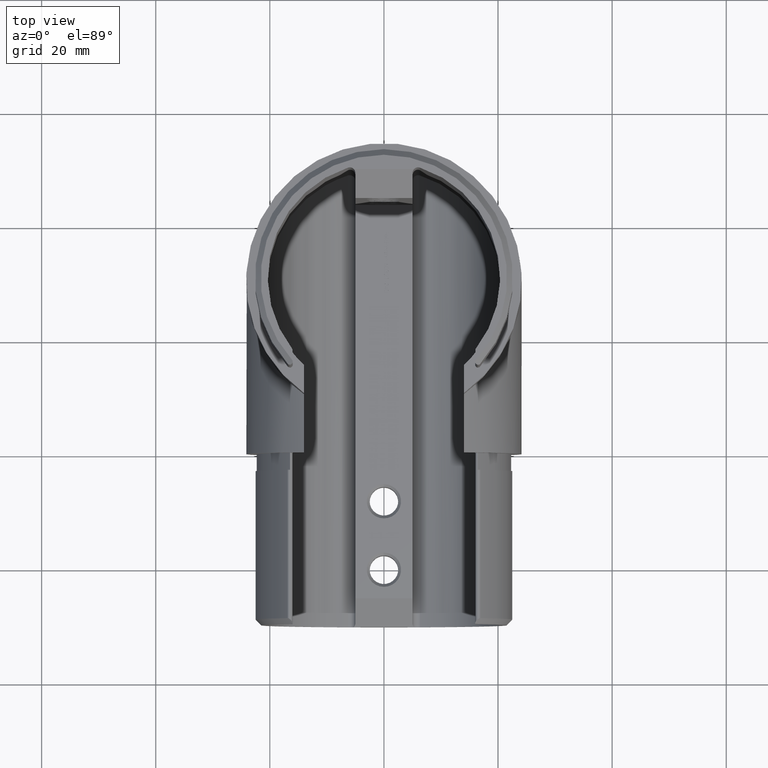
[diagram: clean part render]
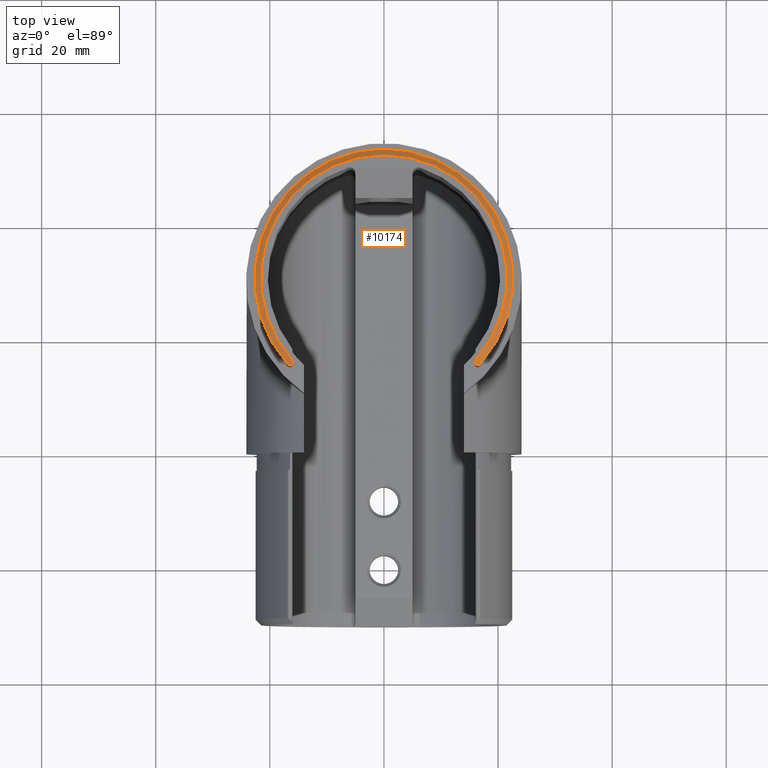
[diagram: same view with one face highlighted and labeled with its STEP entity id]
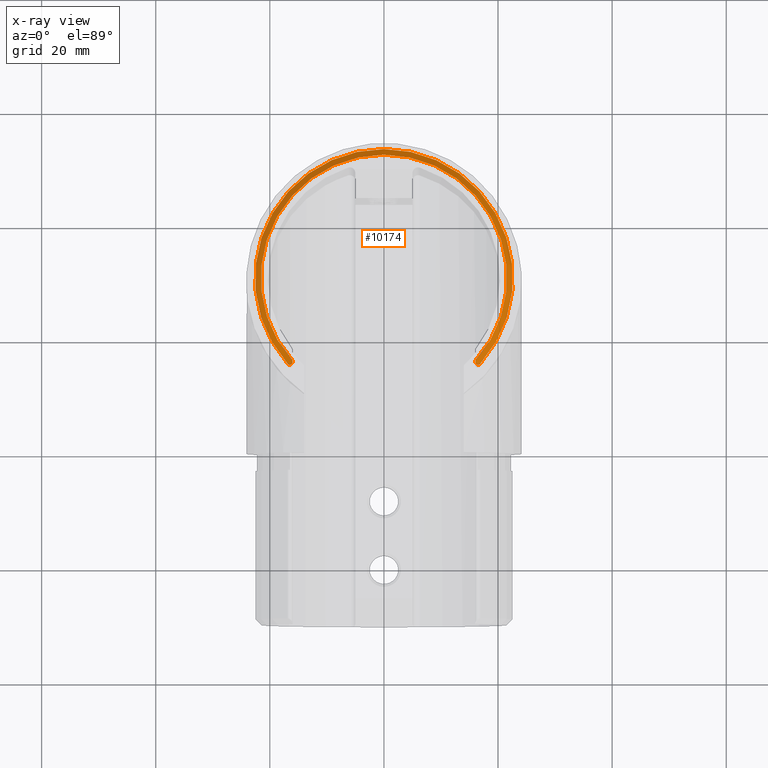
[diagram: x-ray of the same camera — body ghosted, the highlighted face saturated]
A machine part, top view. The second image highlights one B-rep face of the part: STEP entity #10174.
The next image is the same camera in x-ray: the body ghosted, the highlighted face saturated — about 0% of this face is hidden behind the body in this view.
In plain terms, the highlighted conical surface has half-angle 45 deg.
Its self-contained STEP definition (entity closure, byte-faithful):
#450 = DIRECTION ( 'NONE',  ( 0.0000000000000000000, 0.0000000000000000000, -1.000000000000000000 ) ) ;
#1053 = VERTEX_POINT ( 'NONE', #6391 ) ;
#1071 = ORIENTED_EDGE ( 'NONE', *, *, #10304, .F. ) ;
#1148 = EDGE_CURVE ( 'NONE', #17454, #24872, #12680, .T. ) ;
#1313 = EDGE_CURVE ( 'NONE', #11297, #6107, #8907, .T. ) ;
#1973 = CARTESIAN_POINT ( 'NONE',  ( -16.36234966533935900, 14.65833713782039600, 59.12260866581833300 ) ) ;
#2509 = ORIENTED_EDGE ( 'NONE', *, *, #5686, .T. ) ;
#3427 = B_SPLINE_CURVE_WITH_KNOTS ( 'NONE', 3,
 ( #21504, #19527, #5963, #11718, #25443, #13699, #1973, #11806, #13788, #17730, #13871, #15832 ),
 .UNSPECIFIED., .F., .F.,
 ( 4, 2, 2, 2, 2, 4 ),
 ( 0.0000000000000000000, 0.0001893812489046889600, 0.0003787624978093779100, 0.0007575249956187445500, 0.001136287493428111000, 0.001515049991237477600 ),
 .UNSPECIFIED. ) ;
#4060 = CARTESIAN_POINT ( 'NONE',  ( 16.13029567968719700, 14.79912428104608000, 59.38838569096346700 ) ) ;
#5057 = FACE_OUTER_BOUND ( 'NONE', #11352, .T. ) ;
#5317 = CARTESIAN_POINT ( 'NONE',  ( -16.00000000000000400, 15.14761924040870300, 59.72075703113425500 ) ) ;
#5686 = EDGE_CURVE ( 'NONE', #1053, #6107, #3427, .T. ) ;
#5822 = CARTESIAN_POINT ( 'NONE',  ( 16.19867931465650900, 14.73844259132496300, 59.29699370300661300 ) ) ;
#5963 = CARTESIAN_POINT ( 'NONE',  ( -16.77951238180419600, 14.72877171642282300, 58.86238228102786300 ) ) ;
#6070 = VERTEX_POINT ( 'NONE', #8853 ) ;
#6107 = VERTEX_POINT ( 'NONE', #5317 ) ;
#6391 = CARTESIAN_POINT ( 'NONE',  ( -16.87330316742081500, 14.81498619154918300, 58.84999999999996600 ) ) ;
#6508 = CARTESIAN_POINT ( 'NONE',  ( 0.0000000000000000000, 29.84999999999999800, 58.84999999999996600 ) ) ;
#6684 = DIRECTION ( 'NONE',  ( 0.0000000000000000000, 0.0000000000000000000, -1.000000000000000000 ) ) ;
#6858 = AXIS2_PLACEMENT_3D ( 'NONE', #22150, #450, #14241 ) ;
#7227 = DIRECTION ( 'NONE',  ( 1.000000000000000000, 0.0000000000000000000, 0.0000000000000000000 ) ) ;
#8380 = CARTESIAN_POINT ( 'NONE',  ( 16.00000000000000400, 15.21144531449552800, 59.76394285426481200 ) ) ;
#8853 = CARTESIAN_POINT ( 'NONE',  ( 16.87330316742081500, 14.81498619154918300, 58.84999999999996600 ) ) ;
#8907 = B_SPLINE_CURVE_WITH_KNOTS ( 'NONE', 3,
 ( #18594, #20740, #22800, #8994 ),
 .UNSPECIFIED., .F., .F.,
 ( 4, 4 ),
 ( 0.0000000000000000000, 0.0002311817051569399300 ),
 .UNSPECIFIED. ) ;
#8994 = CARTESIAN_POINT ( 'NONE',  ( -16.00000000000000400, 15.14761924040870300, 59.72075703113425500 ) ) ;
#10150 = EDGE_CURVE ( 'NONE', #17454, #6070, #10613, .T. ) ;
#10174 = ADVANCED_FACE ( 'NONE', ( #5057 ), #10883, .T. ) ;
#10304 = EDGE_CURVE ( 'NONE', #1053, #6070, #19138, .T. ) ;
#10542 = CIRCLE ( 'NONE', #25248, 21.59999999999998400 ) ;
#10613 = B_SPLINE_CURVE_WITH_KNOTS ( 'NONE', 3,
 ( #23334, #13813, #19557, #4060, #5822, #13557, #17758, #21531, #23766, #17843, #12374, #17921 ),
 .UNSPECIFIED., .F., .F.,
 ( 4, 2, 2, 2, 2, 4 ),
 ( 6.831903995389913500E-016, 0.0003772778480104126200, 0.0007545556960201419800, 0.001131833544029871600, 0.001320472468034740400, 0.001509111392039609600 ),
 .UNSPECIFIED. ) ;
#10883 = CONICAL_SURFACE ( 'NONE', #6858, 21.59999999999998400, 0.7853981633974396200 ) ;
#10988 = EDGE_CURVE ( 'NONE', #24872, #11297, #10542, .T. ) ;
#10994 = ORIENTED_EDGE ( 'NONE', *, *, #10988, .F. ) ;
#11297 = VERTEX_POINT ( 'NONE', #12912 ) ;
#11352 = EDGE_LOOP ( 'NONE', ( #19812, #24801, #1071, #2509, #19074, #10994 ) ) ;
#11718 = CARTESIAN_POINT ( 'NONE',  ( -16.67309718334161400, 14.67475796577294200, 58.90499979760977600 ) ) ;
#11806 = CARTESIAN_POINT ( 'NONE',  ( -16.19823541999631500, 14.73861712696597700, 59.29743762546233700 ) ) ;
#12374 = CARTESIAN_POINT ( 'NONE',  ( 16.83059204011165000, 14.76705289338987000, 58.84999999999995900 ) ) ;
#12680 = B_SPLINE_CURVE_WITH_KNOTS ( 'NONE', 3,
 ( #16278, #8380, #24253, #18234 ),
 .UNSPECIFIED., .F., .F.,
 ( 4, 4 ),
 ( 0.001530635616913767700, 0.001761817322065237900 ),
 .UNSPECIFIED. ) ;
#12912 = CARTESIAN_POINT ( 'NONE',  ( -16.00000000000000400, 15.33931428222638300, 59.85000000000000100 ) ) ;
#13557 = CARTESIAN_POINT ( 'NONE',  ( 16.36152705768642700, 14.65869702796760700, 59.12345609398193600 ) ) ;
#13699 = CARTESIAN_POINT ( 'NONE',  ( -16.45978068113279500, 14.63804010851799500, 59.03747056491419400 ) ) ;
#13788 = CARTESIAN_POINT ( 'NONE',  ( -16.13034885276009700, 14.79906359690092200, 59.38830540661130200 ) ) ;
#13813 = CARTESIAN_POINT ( 'NONE',  ( 16.00000000000000400, 15.04172783590478000, 59.64910907956013400 ) ) ;
#13871 = CARTESIAN_POINT ( 'NONE',  ( -16.00000000000001100, 15.04182662562401000, 59.64917592237931400 ) ) ;
#13875 = CARTESIAN_POINT ( 'NONE',  ( 16.00000000000000400, 15.33931428222638300, 59.85000000000000100 ) ) ;
#14241 = DIRECTION ( 'NONE',  ( -1.000000000000000000, 0.0000000000000000000, 0.0000000000000000000 ) ) ;
#15239 = AXIS2_PLACEMENT_3D ( 'NONE', #6508, #6684, #22323 ) ;
#15832 = CARTESIAN_POINT ( 'NONE',  ( -16.00000000000000400, 15.14761924040870300, 59.72075703113425500 ) ) ;
#16278 = CARTESIAN_POINT ( 'NONE',  ( 16.00000000000000400, 15.14761924041323100, 59.72075703113732500 ) ) ;
#17454 = VERTEX_POINT ( 'NONE', #17543 ) ;
#17543 = CARTESIAN_POINT ( 'NONE',  ( 16.00000000000000400, 15.14761924041323100, 59.72075703113732500 ) ) ;
#17730 = CARTESIAN_POINT ( 'NONE',  ( -16.03186819653736000, 14.95017147044481300, 59.56335531216863900 ) ) ;
#17758 = CARTESIAN_POINT ( 'NONE',  ( 16.45846581966970800, 14.63795668338714000, 59.03838187468426200 ) ) ;
#17843 = CARTESIAN_POINT ( 'NONE',  ( 16.77927292842649000, 14.72860271173848400, 58.86244713449256200 ) ) ;
#17921 = CARTESIAN_POINT ( 'NONE',  ( 16.87330316742081500, 14.81498619154918300, 58.84999999999996600 ) ) ;
#18234 = CARTESIAN_POINT ( 'NONE',  ( 16.00000000000000400, 15.33931428222638300, 59.85000000000000100 ) ) ;
#18594 = CARTESIAN_POINT ( 'NONE',  ( -16.00000000000000400, 15.33931428222638300, 59.85000000000000100 ) ) ;
#19003 = CARTESIAN_POINT ( 'NONE',  ( 0.0000000000000000000, 29.84999999999999800, 59.85000000000000100 ) ) ;
#19074 = ORIENTED_EDGE ( 'NONE', *, *, #1313, .F. ) ;
#19138 = CIRCLE ( 'NONE', #15239, 22.60000000000000100 ) ;
#19527 = CARTESIAN_POINT ( 'NONE',  ( -16.83057574638361200, 14.76703460747298100, 58.84999999999997300 ) ) ;
#19557 = CARTESIAN_POINT ( 'NONE',  ( 16.03185223621762000, 14.95021687865824200, 59.56339792279096900 ) ) ;
#19812 = ORIENTED_EDGE ( 'NONE', *, *, #1148, .F. ) ;
#20740 = CARTESIAN_POINT ( 'NONE',  ( -16.00000000000000400, 15.27534306398376500, 59.80702471097676900 ) ) ;
#21504 = CARTESIAN_POINT ( 'NONE',  ( -16.87330316742081500, 14.81498619154918300, 58.84999999999996600 ) ) ;
#21531 = CARTESIAN_POINT ( 'NONE',  ( 16.61783815175828800, 14.65875891011839200, 58.93501237649126500 ) ) ;
#22150 = CARTESIAN_POINT ( 'NONE',  ( 0.0000000000000000000, 29.84999999999999800, 59.85000000000000100 ) ) ;
#22323 = DIRECTION ( 'NONE',  ( 1.000000000000000000, 0.0000000000000000000, 0.0000000000000000000 ) ) ;
#22794 = DIRECTION ( 'NONE',  ( 0.0000000000000000000, 0.0000000000000000000, 1.000000000000000000 ) ) ;
#22800 = CARTESIAN_POINT ( 'NONE',  ( -16.00000000000000400, 15.21144531449250600, 59.76394285426278000 ) ) ;
#23334 = CARTESIAN_POINT ( 'NONE',  ( 16.00000000000000400, 15.14761924041323100, 59.72075703113732500 ) ) ;
#23766 = CARTESIAN_POINT ( 'NONE',  ( 16.67270283028078400, 14.67460554899612600, 58.90518895828935100 ) ) ;
#24253 = CARTESIAN_POINT ( 'NONE',  ( 16.00000000000000400, 15.27534306398527500, 59.80702471097779900 ) ) ;
#24801 = ORIENTED_EDGE ( 'NONE', *, *, #10150, .T. ) ;
#24872 = VERTEX_POINT ( 'NONE', #13875 ) ;
#25248 = AXIS2_PLACEMENT_3D ( 'NONE', #19003, #22794, #7227 ) ;
#25443 = CARTESIAN_POINT ( 'NONE',  ( -16.61779404188008900, 14.65879750908406500, 58.93507039972731600 ) ) ;